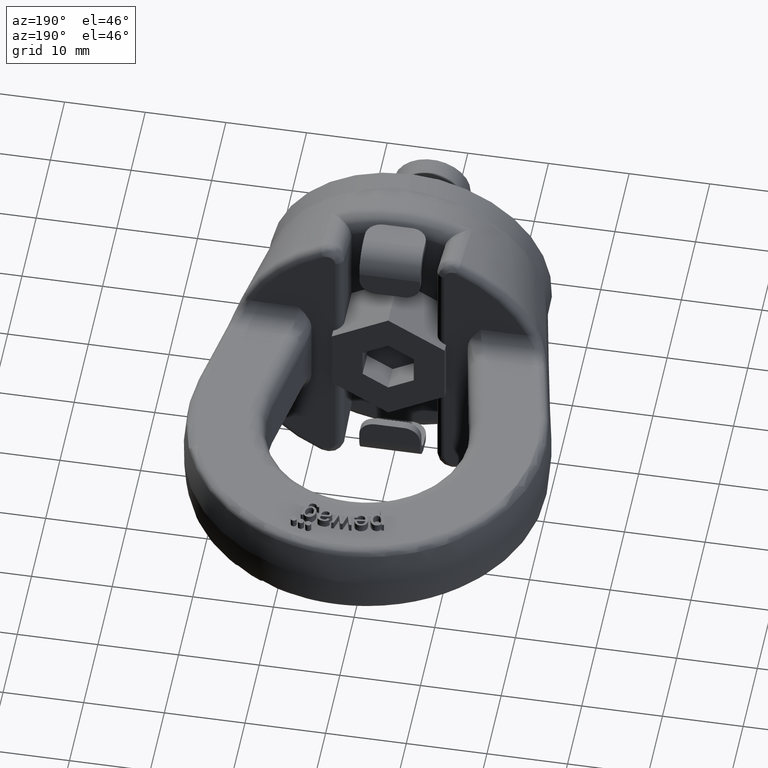
[diagram: clean part render]
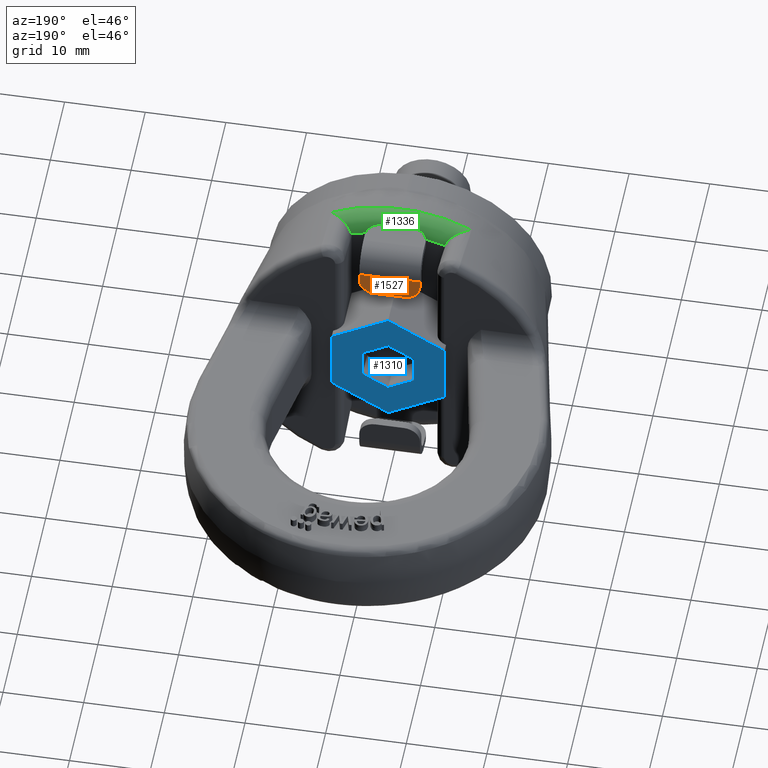
[diagram: same view with three faces highlighted in distinct colors, each labeled with its STEP entity id]
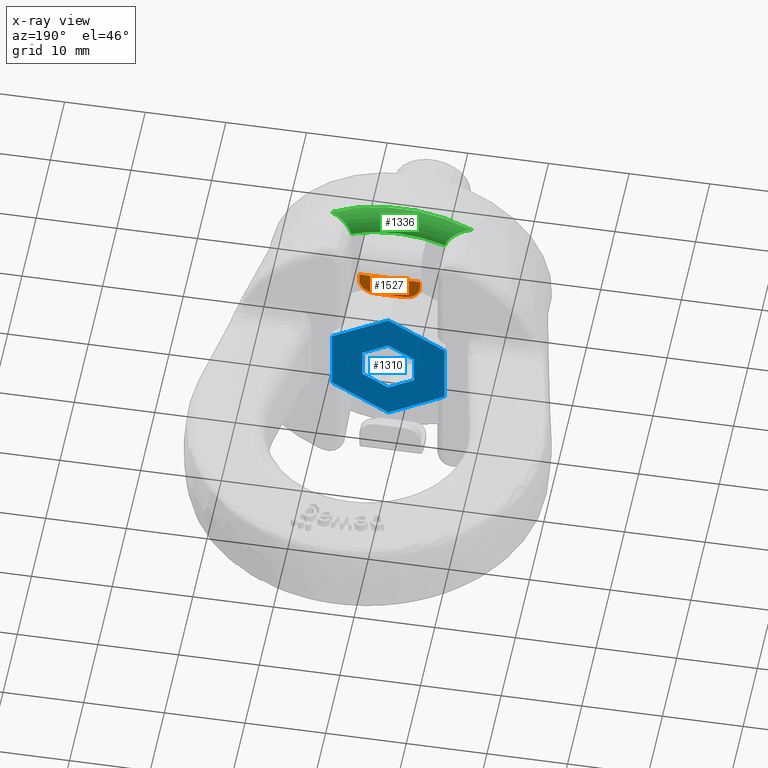
[diagram: x-ray of the same camera — body ghosted, the three highlighted faces saturated]
A machine part, auxiliary view with three faces highlighted in distinct colors.
The next image is the same camera in x-ray (body ghosted, the three faces saturated) — at least one of them is partly hidden behind the body in this view.
Their STEP definitions:

[orange] entity #1527 — the highlighted planar face has unit normal (0, -1, 0).
#1288=FACE_OUTER_BOUND('',#2065,.T.);
#1527=ADVANCED_FACE('',(#1288),#1656,.F.);
#1656=PLANE('',#5347);
#1740=CIRCLE('',#5345,2.);
#1741=CIRCLE('',#5346,2.);
#2065=EDGE_LOOP('',(#3774,#3775,#3776,#3777,#3778,#3779));
#2323=LINE('',#9621,#2659);
#2331=LINE('',#9643,#2667);
#2336=LINE('',#9656,#2672);
#2340=LINE('',#9670,#2676);
#2659=VECTOR('',#6105,1.);
#2667=VECTOR('',#6121,1.);
#2672=VECTOR('',#6130,1.);
#2676=VECTOR('',#6152,1.);
#3774=ORIENTED_EDGE('',*,*,#4804,.T.);
#3775=ORIENTED_EDGE('',*,*,#4812,.T.);
#3776=ORIENTED_EDGE('',*,*,#4798,.T.);
#3777=ORIENTED_EDGE('',*,*,#4813,.F.);
#3778=ORIENTED_EDGE('',*,*,#4788,.F.);
#3779=ORIENTED_EDGE('',*,*,#4814,.T.);
#4224=VERTEX_POINT('',#9620);
#4225=VERTEX_POINT('',#9622);
#4234=VERTEX_POINT('',#9642);
#4235=VERTEX_POINT('',#9644);
#4240=VERTEX_POINT('',#9655);
#4241=VERTEX_POINT('',#9657);
#4788=EDGE_CURVE('',#4224,#4225,#2323,.T.);
#4798=EDGE_CURVE('',#4235,#4234,#2331,.T.);
#4804=EDGE_CURVE('',#4241,#4240,#2336,.T.);
#4812=EDGE_CURVE('',#4240,#4235,#1740,.T.);
#4813=EDGE_CURVE('',#4225,#4234,#2340,.T.);
#4814=EDGE_CURVE('',#4224,#4241,#1741,.T.);
#5345=AXIS2_PLACEMENT_3D('',#9669,#6150,#6151);
#5346=AXIS2_PLACEMENT_3D('',#9671,#6153,#6154);
#5347=AXIS2_PLACEMENT_3D('',#9672,#6155,#6156);
#6105=DIRECTION('',(0.,0.,1.));
#6121=DIRECTION('',(0.,0.,1.));
#6130=DIRECTION('',(-1.,0.,0.));
#6150=DIRECTION('',(0.,1.,0.));
#6151=DIRECTION('',(0.,0.,-1.));
#6152=DIRECTION('',(-1.,0.,0.));
#6153=DIRECTION('',(0.,1.,0.));
#6154=DIRECTION('',(0.,0.,-1.));
#6155=DIRECTION('',(0.,-1.,0.));
#6156=DIRECTION('',(0.,0.,-1.));
#9620=CARTESIAN_POINT('',(3.765,15.,13.5));
#9621=CARTESIAN_POINT('',(3.765,15.,11.5));
#9622=CARTESIAN_POINT('',(3.765,15.,14.5));
#9642=CARTESIAN_POINT('',(-3.765,15.,14.5));
#9643=CARTESIAN_POINT('',(-3.765,15.,11.5));
#9644=CARTESIAN_POINT('',(-3.765,15.,13.5));
#9655=CARTESIAN_POINT('',(-1.765,15.,11.5));
#9656=CARTESIAN_POINT('',(3.765,15.,11.5));
#9657=CARTESIAN_POINT('',(1.765,15.,11.5));
#9669=CARTESIAN_POINT('',(-1.765,15.,13.5));
#9670=CARTESIAN_POINT('',(3.765,15.,14.5));
#9671=CARTESIAN_POINT('',(1.765,15.,13.5));
#9672=CARTESIAN_POINT('',(3.765,15.,11.5));

[blue] entity #1310 — the highlighted planar face has unit normal (0, -1, 0).
#1310=ADVANCED_FACE('',(#1765,#1766),#1549,.F.);
#1549=PLANE('',#5123);
#1765=FACE_BOUND('',#1821,.T.);
#1766=FACE_BOUND('',#1822,.T.);
#1821=EDGE_LOOP('',(#2755,#2756,#2757,#2758,#2759,#2760));
#1822=EDGE_LOOP('',(#2761,#2762,#2763,#2764,#2765,#2766));
#2113=LINE('',#6529,#2393);
#2114=LINE('',#6532,#2394);
#2115=LINE('',#6534,#2395);
#2116=LINE('',#6536,#2396);
#2117=LINE('',#6538,#2397);
#2118=LINE('',#6540,#2398);
#2119=LINE('',#6541,#2399);
#2120=LINE('',#6544,#2400);
#2121=LINE('',#6546,#2401);
#2122=LINE('',#6548,#2402);
#2123=LINE('',#6550,#2403);
#2124=LINE('',#6552,#2404);
#2393=VECTOR('',#5423,1.);
#2394=VECTOR('',#5424,1.);
#2395=VECTOR('',#5425,1.);
#2396=VECTOR('',#5426,1.);
#2397=VECTOR('',#5427,1.);
#2398=VECTOR('',#5428,1.);
#2399=VECTOR('',#5429,1.);
#2400=VECTOR('',#5430,1.);
#2401=VECTOR('',#5431,1.);
#2402=VECTOR('',#5432,1.);
#2403=VECTOR('',#5433,1.);
#2404=VECTOR('',#5434,1.);
#2755=ORIENTED_EDGE('',*,*,#4319,.F.);
#2756=ORIENTED_EDGE('',*,*,#4320,.F.);
#2757=ORIENTED_EDGE('',*,*,#4321,.F.);
#2758=ORIENTED_EDGE('',*,*,#4322,.F.);
#2759=ORIENTED_EDGE('',*,*,#4323,.F.);
#2760=ORIENTED_EDGE('',*,*,#4324,.F.);
#2761=ORIENTED_EDGE('',*,*,#4325,.F.);
#2762=ORIENTED_EDGE('',*,*,#4326,.F.);
#2763=ORIENTED_EDGE('',*,*,#4327,.F.);
#2764=ORIENTED_EDGE('',*,*,#4328,.F.);
#2765=ORIENTED_EDGE('',*,*,#4329,.F.);
#2766=ORIENTED_EDGE('',*,*,#4330,.F.);
#3931=VERTEX_POINT('',#6530);
#3932=VERTEX_POINT('',#6531);
#3933=VERTEX_POINT('',#6533);
#3934=VERTEX_POINT('',#6535);
#3935=VERTEX_POINT('',#6537);
#3936=VERTEX_POINT('',#6539);
#3937=VERTEX_POINT('',#6542);
#3938=VERTEX_POINT('',#6543);
#3939=VERTEX_POINT('',#6545);
#3940=VERTEX_POINT('',#6547);
#3941=VERTEX_POINT('',#6549);
#3942=VERTEX_POINT('',#6551);
#4319=EDGE_CURVE('',#3931,#3932,#2113,.T.);
#4320=EDGE_CURVE('',#3933,#3931,#2114,.T.);
#4321=EDGE_CURVE('',#3934,#3933,#2115,.T.);
#4322=EDGE_CURVE('',#3935,#3934,#2116,.T.);
#4323=EDGE_CURVE('',#3936,#3935,#2117,.T.);
#4324=EDGE_CURVE('',#3932,#3936,#2118,.T.);
#4325=EDGE_CURVE('',#3937,#3938,#2119,.T.);
#4326=EDGE_CURVE('',#3939,#3937,#2120,.T.);
#4327=EDGE_CURVE('',#3940,#3939,#2121,.T.);
#4328=EDGE_CURVE('',#3941,#3940,#2122,.T.);
#4329=EDGE_CURVE('',#3942,#3941,#2123,.T.);
#4330=EDGE_CURVE('',#3938,#3942,#2124,.T.);
#5123=AXIS2_PLACEMENT_3D('',#6553,#5435,#5436);
#5423=DIRECTION('',(0.,0.,1.));
#5424=DIRECTION('',(0.866025403784441,0.,0.499999999999995));
#5425=DIRECTION('',(0.866025403784444,0.,-0.499999999999991));
#5426=DIRECTION('',(0.,0.,-1.));
#5427=DIRECTION('',(-0.866025403784442,0.,-0.499999999999993));
#5428=DIRECTION('',(-0.866025403784442,0.,0.499999999999993));
#5429=DIRECTION('',(-0.866025403784442,0.,-0.499999999999995));
#5430=DIRECTION('',(1.18292488089541E-16,0.,-1.));
#5431=DIRECTION('',(0.866025403784443,0.,-0.499999999999992));
#5432=DIRECTION('',(0.866025403784443,0.,0.499999999999992));
#5433=DIRECTION('',(1.18292488089541E-16,0.,1.));
#5434=DIRECTION('',(-0.866025403784444,0.,0.49999999999999));
#5435=DIRECTION('',(0.,-1.,0.));
#5436=DIRECTION('',(0.,0.,-1.));
#6529=CARTESIAN_POINT('',(7.,16.,-4.04145188432739));
#6530=CARTESIAN_POINT('',(7.00000000000001,16.,-4.04145188432737));
#6531=CARTESIAN_POINT('',(7.,16.,4.04145188432739));
#6532=CARTESIAN_POINT('',(1.89375219623897E-14,16.,-8.0829037686547));
#6533=CARTESIAN_POINT('',(1.98048837003781E-14,16.,-8.0829037686547));
#6534=CARTESIAN_POINT('',(-6.99999999999999,16.,-4.04145188432741));
#6535=CARTESIAN_POINT('',(-6.99999999999999,16.,-4.0414518843274));
#6536=CARTESIAN_POINT('',(-7.,16.,4.04145188432739));
#6537=CARTESIAN_POINT('',(-7.,16.,4.04145188432739));
#6538=CARTESIAN_POINT('',(0.,16.,8.0829037686547));
#6539=CARTESIAN_POINT('',(-8.67361737988404E-16,16.,8.0829037686547));
#6540=CARTESIAN_POINT('',(7.,16.,4.04145188432739));
#6541=CARTESIAN_POINT('',(8.58951889008386E-15,16.,-3.66617420935408));
#6542=CARTESIAN_POINT('',(3.175,16.,-1.83308710467705));
#6543=CARTESIAN_POINT('',(9.02319975907806E-15,16.,-3.66617420935408));
#6544=CARTESIAN_POINT('',(3.175,16.,-1.83308710467705));
#6545=CARTESIAN_POINT('',(3.175,16.,1.83308710467705));
#6546=CARTESIAN_POINT('',(3.175,16.,1.83308710467705));
#6547=CARTESIAN_POINT('',(-4.33680868994202E-16,16.,3.66617420935408));
#6548=CARTESIAN_POINT('',(0.,16.,3.66617420935408));
#6549=CARTESIAN_POINT('',(-3.175,16.,1.83308710467705));
#6550=CARTESIAN_POINT('',(-3.175,16.,1.83308710467705));
#6551=CARTESIAN_POINT('',(-3.17499999999999,16.,-1.83308710467706));
#6552=CARTESIAN_POINT('',(-3.17499999999999,16.,-1.83308710467706));
#6553=CARTESIAN_POINT('',(0.,16.,0.));

[green] entity #1336 — the highlighted toroidal blend (fillet) surface has major radius 16.2519 mm and minor (blend) radius 2 mm.
#1014=TOROIDAL_SURFACE('',#5174,16.2518933962199,2.);
#1112=FACE_OUTER_BOUND('',#1852,.T.);
#1336=ADVANCED_FACE('',(#1112),#1014,.T.);
#1673=CIRCLE('',#5128,16.2518933962199);
#1682=CIRCLE('',#5140,18.2139380133096);
#1852=EDGE_LOOP('',(#2912,#2913,#2914,#2915));
#2912=ORIENTED_EDGE('',*,*,#4429,.T.);
#2913=ORIENTED_EDGE('',*,*,#4350,.F.);
#2914=ORIENTED_EDGE('',*,*,#4431,.T.);
#2915=ORIENTED_EDGE('',*,*,#4387,.F.);
#3961=VERTEX_POINT('',#6644);
#3962=VERTEX_POINT('',#6646);
#3997=VERTEX_POINT('',#6852);
#3998=VERTEX_POINT('',#6854);
#4350=EDGE_CURVE('',#3961,#3962,#1673,.T.);
#4387=EDGE_CURVE('',#3997,#3998,#1682,.T.);
#4429=EDGE_CURVE('',#3997,#3962,#4900,.T.);
#4431=EDGE_CURVE('',#3961,#3998,#4902,.T.);
#4900=B_SPLINE_CURVE_WITH_KNOTS('',3,(#6980,#6981,#6982,#6983,#6984,#6985,
#6986,#6987,#6988,#6989,#6990,#6991,#6992,#6993,#6994,#6995,#6996,#6997,
#6998,#6999,#7000,#7001),.UNSPECIFIED.,.F.,.F.,(4,3,3,3,3,3,3,4),(0.,0.00214054734167095,
0.268351921608042,0.505105205572819,0.675139962822805,0.783797163269924,
0.89180219768882,1.),.UNSPECIFIED.);
#4902=B_SPLINE_CURVE_WITH_KNOTS('',3,(#7033,#7034,#7035,#7036,#7037,#7038,
#7039,#7040,#7041,#7042,#7043,#7044,#7045,#7046,#7047,#7048,#7049,#7050,
#7051,#7052,#7053,#7054),.UNSPECIFIED.,.F.,.F.,(4,3,3,3,3,3,3,4),(0.,0.108197802311181,
0.216202836730077,0.324860037177199,0.494894794427188,0.731648078391968,
0.997859452658328,1.),.UNSPECIFIED.);
#5128=AXIS2_PLACEMENT_3D('',#6645,#5456,#5457);
#5140=AXIS2_PLACEMENT_3D('',#6853,#5493,#5494);
#5174=AXIS2_PLACEMENT_3D('',#7067,#5583,#5584);
#5456=DIRECTION('',(-1.50453033475872E-16,1.,0.));
#5457=DIRECTION('',(-1.,-1.06739776940716E-16,0.));
#5493=DIRECTION('',(1.50453033475872E-16,-1.,0.));
#5494=DIRECTION('',(1.,1.42862307539631E-16,0.));
#5583=DIRECTION('',(-1.50453033475872E-16,1.,0.));
#5584=DIRECTION('',(-1.,-1.42565220904924E-16,0.));
#6644=CARTESIAN_POINT('',(-5.81404682029519,9.,15.1763269117898));
#6645=CARTESIAN_POINT('',(-1.52861258420828E-13,9.,0.));
#6646=CARTESIAN_POINT('',(5.81404682029519,9.,15.1763269117896));
#6852=CARTESIAN_POINT('',(8.70244624581682,6.61221021087525,16.0004677210184));
#6853=CARTESIAN_POINT('',(-1.11508807848184E-13,6.61221021087526,0.));
#6854=CARTESIAN_POINT('',(-8.7024462458168,6.61221021087526,16.0004677210185));
#6980=CARTESIAN_POINT('',(8.70244624581682,6.61221021087525,16.0004677210184));
#6981=CARTESIAN_POINT('',(8.70051146501197,6.61421452347793,16.0019709686979));
#6982=CARTESIAN_POINT('',(8.69857502880252,6.61621957677158,16.0034711025012));
#6983=CARTESIAN_POINT('',(8.69663684040894,6.61822524073238,16.0049681453146));
#6984=CARTESIAN_POINT('',(8.45658820702567,6.86663086240022,16.1903799879766));
#6985=CARTESIAN_POINT('',(8.18718544546318,7.12804561223443,16.330251672694));
#6986=CARTESIAN_POINT('',(7.90493345565031,7.38851291468304,16.4089717417139));
#6987=CARTESIAN_POINT('',(7.6540642166336,7.62001964027722,16.478939162753));
#6988=CARTESIAN_POINT('',(7.38674184490502,7.85660534688832,16.5021450850158));
#6989=CARTESIAN_POINT('',(7.12257030445479,8.07996590387747,16.460316412019));
#6990=CARTESIAN_POINT('',(6.93230630832027,8.24083664748278,16.430190190005));
#6991=CARTESIAN_POINT('',(6.73923390625416,8.39856303756253,16.3651098576136));
#6992=CARTESIAN_POINT('',(6.5599904112691,8.53740783712136,16.2574935727537));
#6993=CARTESIAN_POINT('',(6.44477554543961,8.62665506449563,16.188319537611));
#6994=CARTESIAN_POINT('',(6.33338063463221,8.70951495272915,16.1001824903717));
#6995=CARTESIAN_POINT('',(6.23365856236083,8.77892562794363,15.9940587583029));
#6996=CARTESIAN_POINT('',(6.13481649009155,8.84772378686214,15.8888715178485));
#6997=CARTESIAN_POINT('',(6.04546550835713,8.90455377814986,15.7632180623299));
#6998=CARTESIAN_POINT('',(5.97431591642602,8.94242453327141,15.6251208539945));
#6999=CARTESIAN_POINT('',(5.90311819109544,8.98032090833168,15.4869302215379));
#7000=CARTESIAN_POINT('',(5.84845725109071,9.,15.3325889496817));
#7001=CARTESIAN_POINT('',(5.81404682029519,9.,15.1763269117896));
#7033=CARTESIAN_POINT('',(-5.81404682029519,9.,15.1763269117898));
#7034=CARTESIAN_POINT('',(-5.84845725109071,9.,15.3325889496818));
#7035=CARTESIAN_POINT('',(-5.90311819109544,8.98032090833168,15.486930221538));
#7036=CARTESIAN_POINT('',(-5.97431591642603,8.94242453327141,15.6251208539946));
#7037=CARTESIAN_POINT('',(-6.04546550835713,8.90455377814985,15.76321806233));
#7038=CARTESIAN_POINT('',(-6.13481649009156,8.84772378686214,15.8888715178486));
#7039=CARTESIAN_POINT('',(-6.23365856236084,8.77892562794363,15.994058758303));
#7040=CARTESIAN_POINT('',(-6.33338063463222,8.70951495272914,16.1001824903718));
#7041=CARTESIAN_POINT('',(-6.44477554543962,8.62665506449563,16.1883195376111));
#7042=CARTESIAN_POINT('',(-6.55999041126912,8.53740783712135,16.2574935727538));
#7043=CARTESIAN_POINT('',(-6.73923390625419,8.39856303756253,16.3651098576137));
#7044=CARTESIAN_POINT('',(-6.93230630832029,8.24083664748278,16.4301901900051));
#7045=CARTESIAN_POINT('',(-7.12257030445483,8.07996590387747,16.4603164120191));
#7046=CARTESIAN_POINT('',(-7.38674184490507,7.85660534688832,16.5021450850159));
#7047=CARTESIAN_POINT('',(-7.65406421663365,7.62001964027723,16.4789391627531));
#7048=CARTESIAN_POINT('',(-7.90493345565038,7.38851291468307,16.408971741714));
#7049=CARTESIAN_POINT('',(-8.18718544546325,7.12804561223449,16.3302516726941));
#7050=CARTESIAN_POINT('',(-8.45658820676845,6.866630862098,16.1903799880487));
#7051=CARTESIAN_POINT('',(-8.69663684041529,6.6182252407399,16.004968145313));
#7052=CARTESIAN_POINT('',(-8.69857502881101,6.61621957678158,16.003471102499));
#7053=CARTESIAN_POINT('',(-8.70051146501407,6.61421452348044,16.0019709686974));
#7054=CARTESIAN_POINT('',(-8.7024462458168,6.61221021087526,16.0004677210185));
#7067=CARTESIAN_POINT('',(-1.52560352353876E-13,6.99999999999999,0.));